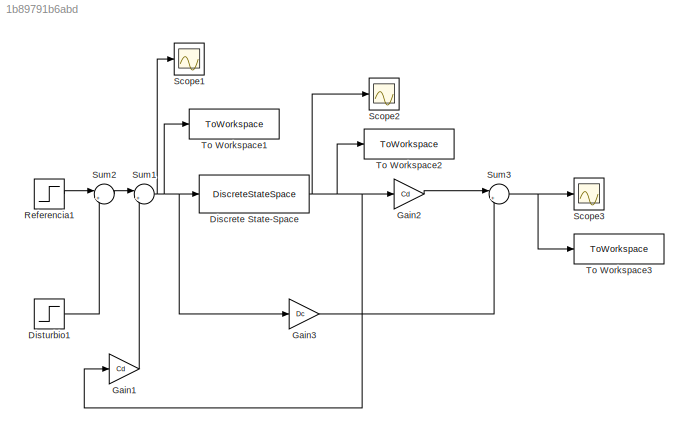
MODEL slx_1b89791b6abd
KIND model
CONFIG AbsTol = auto
CONFIG EnableMultiTasking = off
CONFIG FixedStep = auto
CONFIG MaxStep = auto
CONFIG MinStep = auto
CONFIG RelTol = 1e-3
CONFIG SampleTimeConstraint = Unconstrained
CONFIG SolverName = VariableStepAuto
CONFIG StartTime = 0.0
CONFIG StopTime = 24.00
BLOCK [DiscreteStateSpace] Discrete State-Space
  A = F
  B = H
  C = [1 0; 0 1]
  D = [0 ; 0]
  SampleTime = T0
BLOCK [Step] Disturbio1
  After = R
  SampleTime = 0
  Time = 0
BLOCK [Gain] Gain1
  Gain = Cd
  Multiplication = Matrix(K*u)
BLOCK [Gain] Gain2
  Gain = Cd
  Multiplication = Matrix(K*u)
BLOCK [Gain] Gain3
  Gain = Dc
BLOCK [Step] Referencia1
  After = R
  SampleTime = 0
  Time = 0
BLOCK [Scope] Scope1
  Floating = off
  NumInputPorts = 1
  Ports = [1]
  ScopeSpecificationString = Simulink.scopes.TimeScopeBlockCfg('CurrentConfiguration', extmgr.ConfigurationSet(extmgr.Configuration('Core','General UI',true),extmgr.Configuration('Core','Source UI',true),extmgr.Configuration('Sources','WiredSimulink',true,'DataLoggingVariableName','ScopeData1'),extmgr.Configuration('Visuals','Time Domain',true,'SerializedDisplays',{struct('MinYLimReal','0.92611','MaxYLimReal','2.45265','YLabe...<+1387ch>
BLOCK [Scope] Scope2
  Floating = off
  NumInputPorts = 1
  Ports = [1]
  ScopeSpecificationString = Simulink.scopes.TimeScopeBlockCfg('CurrentConfiguration', extmgr.ConfigurationSet(extmgr.Configuration('Core','General UI',true),extmgr.Configuration('Core','Source UI',true),extmgr.Configuration('Sources','WiredSimulink',true,'DataLoggingVariableName','ScopeData2'),extmgr.Configuration('Visuals','Time Domain',true,'SerializedDisplays',{struct('MinYLimReal','-0.17728','MaxYLimReal','1.15554','YLab...<+1432ch>
BLOCK [Scope] Scope3
  Floating = off
  NumInputPorts = 1
  Ports = [1]
  ScopeSpecificationString = Simulink.scopes.TimeScopeBlockCfg('CurrentConfiguration', extmgr.ConfigurationSet(extmgr.Configuration('Core','General UI',true),extmgr.Configuration('Core','Source UI',true),extmgr.Configuration('Sources','WiredSimulink',true),extmgr.Configuration('Visuals','Time Domain',true,'SerializedDisplays',{struct('MinYLimReal','-0.15265','MaxYLimReal','1.37389','YLabelReal','','MinYLimMag','0.00000','MaxY...<+1324ch>
BLOCK [Sum] Sum1
  Inputs = |+-
  Ports = [2, 1]
BLOCK [Sum] Sum2
  Inputs = |++
  Ports = [2, 1]
BLOCK [Sum] Sum3
  Inputs = |++
  Ports = [2, 1]
BLOCK [ToWorkspace] To Workspace1
  FixptAsFi = on
  MaxDataPoints = inf
  Ports = [1]
  SampleTime = -1
  SaveFormat = Timeseries
  VariableName = u_d
BLOCK [ToWorkspace] To Workspace2
  FixptAsFi = on
  MaxDataPoints = inf
  Ports = [1]
  SampleTime = -1
  SaveFormat = Timeseries
  VariableName = x_d
BLOCK [ToWorkspace] To Workspace3
  FixptAsFi = on
  MaxDataPoints = inf
  Ports = [1]
  SampleTime = -1
  SaveFormat = Timeseries
  VariableName = y_d
NET Discrete State-Space:1 -> Gain1:1, Gain2:1, Scope2:1, To Workspace2:1
LINE Disturbio1:1 -> Sum2:2
LINE Gain1:1 -> Sum1:2
LINE Gain2:1 -> Sum3:1
LINE Gain3:1 -> Sum3:2
LINE Referencia1:1 -> Sum2:1
NET Sum1:1 -> Discrete State-Space:1, Gain3:1, Scope1:1, To Workspace1:1
LINE Sum2:1 -> Sum1:1
NET Sum3:1 -> Scope3:1, To Workspace3:1
note: NET lines group one-source signal fan-out (src -> all destinations, sorted); 1:1 wires keep LINE
